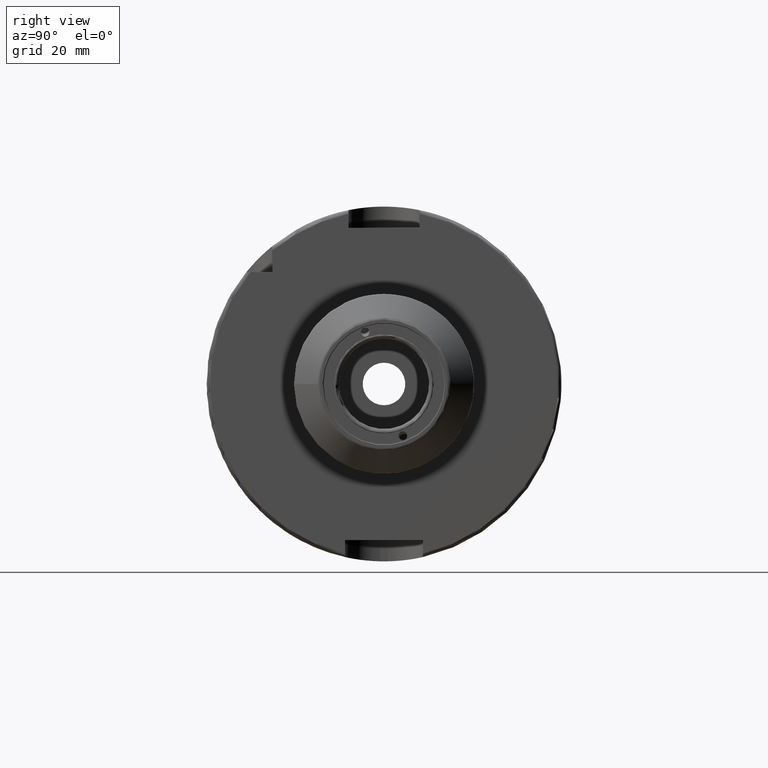
[diagram: clean part render]
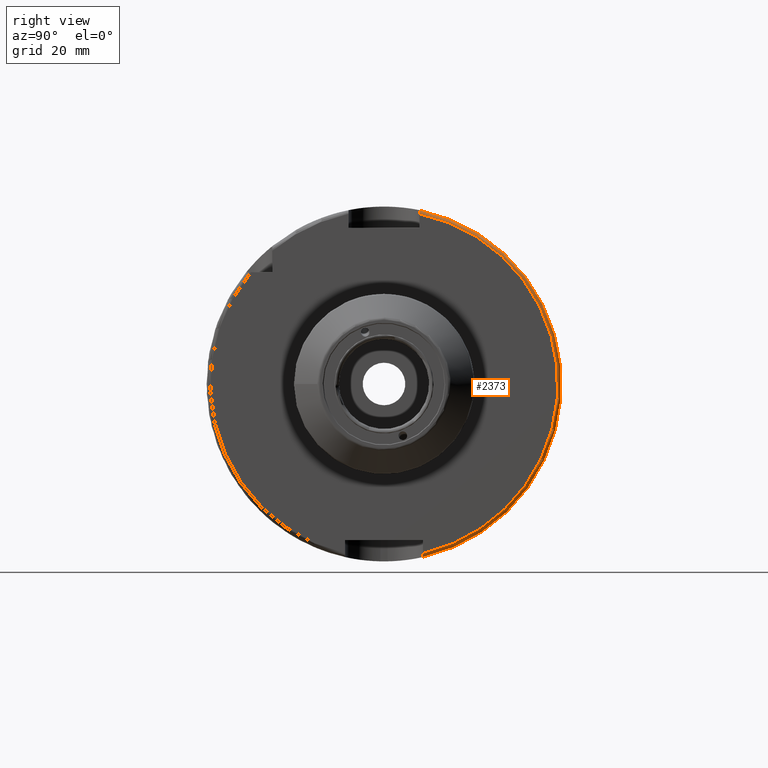
[diagram: same view with one face highlighted and labeled with its STEP entity id]
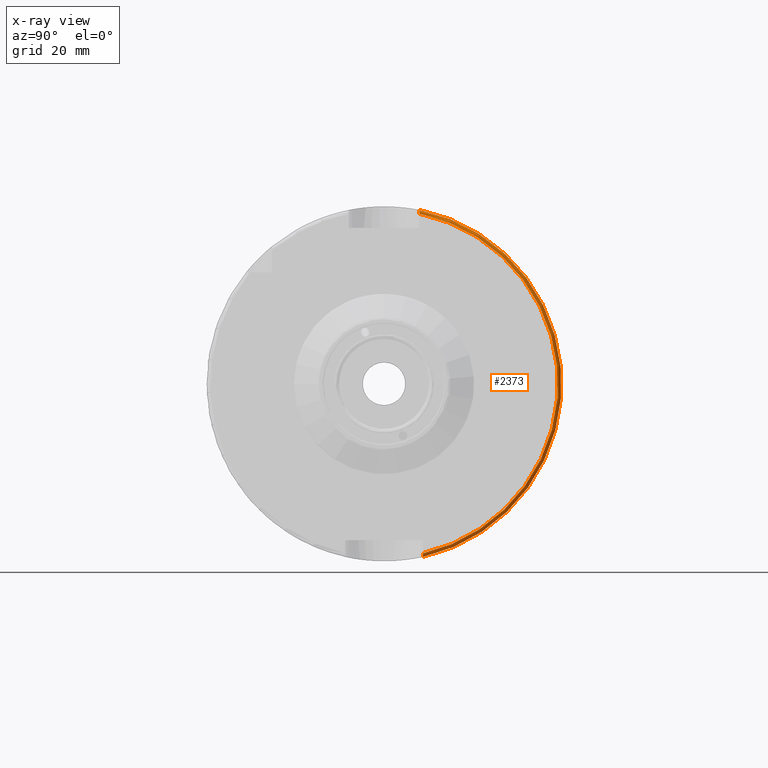
[diagram: x-ray of the same camera — body ghosted, the highlighted face saturated]
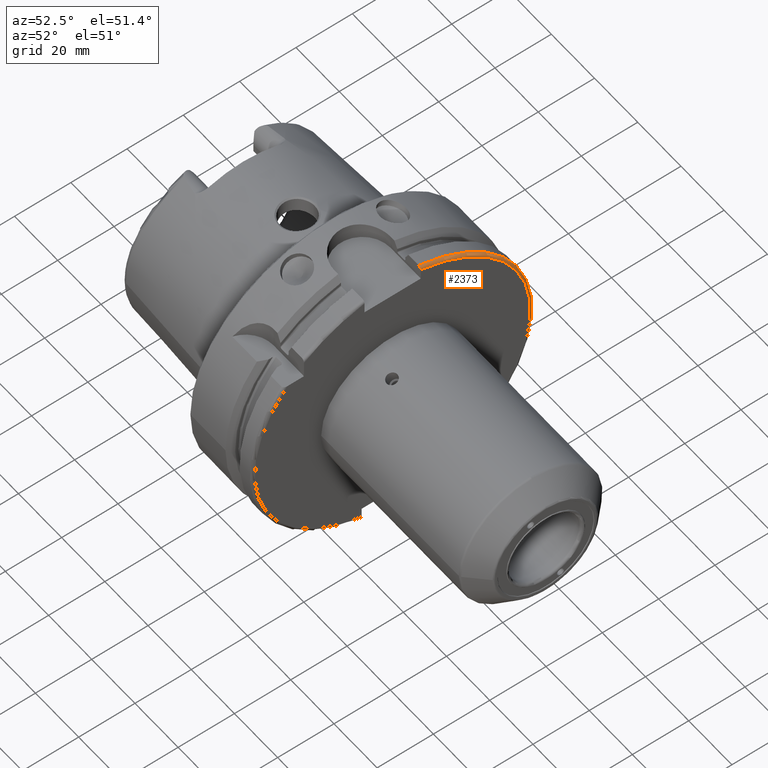
[diagram: same view with one face highlighted and labeled with its STEP entity id]
A machine part, right view. The second image highlights one B-rep face of the part: STEP entity #2373.
The next image is the same camera in x-ray: the body ghosted, the highlighted face saturated — about 0% of this face is hidden behind the body in this view.
A second angle (auxiliary view) of the same face is appended — the face is thin or edge-on in the first view.
In plain terms, the highlighted toroidal blend (fillet) surface has major radius 49 mm and minor (blend) radius 1 mm.
Its self-contained STEP definition (entity closure, byte-faithful):
#39=TOROIDAL_SURFACE('',#2621,49.,1.);
#186=CIRCLE('',#2620,49.);
#187=CIRCLE('',#2622,50.);
#363=FACE_OUTER_BOUND('',#520,.T.);
#520=EDGE_LOOP('',(#1968,#1969,#1970,#1971));
#651=B_SPLINE_CURVE_WITH_KNOTS('',3,(#5062,#5063,#5064,#5065,#5066,#5067,
#5068,#5069,#5070,#5071),.UNSPECIFIED.,.F.,.F.,(4,2,2,2,4),(-0.150007250748607,
-0.111709319934006,-0.073924584474287,-0.0367272650241834,0.),
 .UNSPECIFIED.);
#657=B_SPLINE_CURVE_WITH_KNOTS('',3,(#5193,#5194,#5195,#5196,#5197,#5198,
#5199,#5200,#5201,#5202),.UNSPECIFIED.,.F.,.F.,(4,2,2,2,4),(0.,0.0367798178285196,
0.0739463090088053,0.111595049686659,0.149664155971102),.UNSPECIFIED.);
#1089=VERTEX_POINT('',#5060);
#1090=VERTEX_POINT('',#5061);
#1113=VERTEX_POINT('',#5183);
#1116=VERTEX_POINT('',#5191);
#1392=EDGE_CURVE('',#1089,#1090,#651,.T.);
#1423=EDGE_CURVE('',#1089,#1113,#186,.T.);
#1427=EDGE_CURVE('',#1090,#1116,#187,.T.);
#1428=EDGE_CURVE('',#1116,#1113,#657,.T.);
#1968=ORIENTED_EDGE('',*,*,#1392,.T.);
#1969=ORIENTED_EDGE('',*,*,#1427,.T.);
#1970=ORIENTED_EDGE('',*,*,#1428,.T.);
#1971=ORIENTED_EDGE('',*,*,#1423,.F.);
#2373=ADVANCED_FACE('',(#363),#39,.T.);
#2620=AXIS2_PLACEMENT_3D('',#5184,#3160,#3161);
#2621=AXIS2_PLACEMENT_3D('',#5190,#3165,#3166);
#2622=AXIS2_PLACEMENT_3D('',#5192,#3167,#3168);
#3160=DIRECTION('center_axis',(1.,0.,0.));
#3161=DIRECTION('ref_axis',(0.,0.,-1.));
#3165=DIRECTION('center_axis',(1.,0.,0.));
#3166=DIRECTION('ref_axis',(0.,0.,-1.));
#3167=DIRECTION('center_axis',(1.,0.,0.));
#3168=DIRECTION('ref_axis',(0.,0.,-1.));
#5060=CARTESIAN_POINT('',(29.,11.,-47.7493455452533));
#5061=CARTESIAN_POINT('',(28.,11.,-48.7749935930288));
#5062=CARTESIAN_POINT('Ctrl Pts',(29.,11.,-47.7493455452533));
#5063=CARTESIAN_POINT('Ctrl Pts',(29.,11.,-47.8770053146353));
#5064=CARTESIAN_POINT('Ctrl Pts',(28.9706639476237,11.,-48.0273618911654));
#5065=CARTESIAN_POINT('Ctrl Pts',(28.8748308300651,11.,-48.2621670900838));
#5066=CARTESIAN_POINT('Ctrl Pts',(28.7919641478885,11.,-48.3885636593617));
#5067=CARTESIAN_POINT('Ctrl Pts',(28.6165742030546,11.,-48.5666323605576));
#5068=CARTESIAN_POINT('Ctrl Pts',(28.4935811491945,11.,-48.6503638235243));
#5069=CARTESIAN_POINT('Ctrl Pts',(28.2664089378791,11.,-48.7458273107991));
#5070=CARTESIAN_POINT('Ctrl Pts',(28.1224242167473,11.,-48.7749935930288));
#5071=CARTESIAN_POINT('Ctrl Pts',(28.,11.,-48.7749935930288));
#5183=CARTESIAN_POINT('',(29.,10.,47.9687398208458));
#5184=CARTESIAN_POINT('Origin',(29.,0.,0.));
#5190=CARTESIAN_POINT('Origin',(28.,0.,0.));
#5191=CARTESIAN_POINT('',(28.,10.,48.9897948556636));
#5192=CARTESIAN_POINT('Origin',(28.,0.,0.));
#5193=CARTESIAN_POINT('Ctrl Pts',(28.,10.,48.9897948556636));
#5194=CARTESIAN_POINT('Ctrl Pts',(28.1225993927617,10.,48.9897948556636));
#5195=CARTESIAN_POINT('Ctrl Pts',(28.2668083802627,10.,48.9606770275179));
#5196=CARTESIAN_POINT('Ctrl Pts',(28.4941340959036,10.,48.8653921723158));
#5197=CARTESIAN_POINT('Ctrl Pts',(28.6171537831048,10.,48.7819192687639));
#5198=CARTESIAN_POINT('Ctrl Pts',(28.7923918657708,10.,48.6044818239964));
#5199=CARTESIAN_POINT('Ctrl Pts',(28.8751547043338,10.,48.4786678528046));
#5200=CARTESIAN_POINT('Ctrl Pts',(28.9707427935162,10.,48.245076212515));
#5201=CARTESIAN_POINT('Ctrl Pts',(29.,10.,48.095636841794));
#5202=CARTESIAN_POINT('Ctrl Pts',(29.,10.,47.9687398208458));